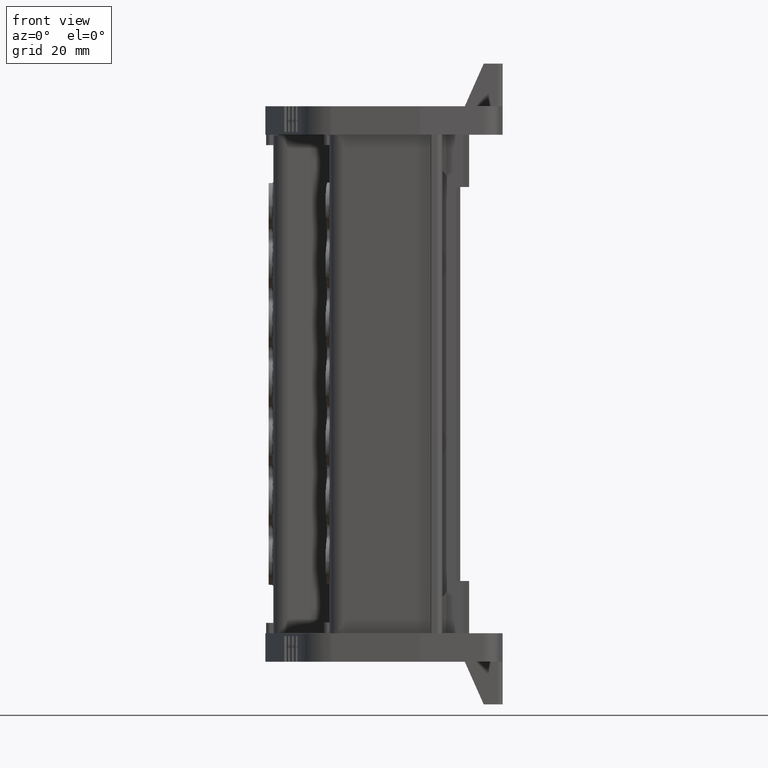
[diagram: clean part render]
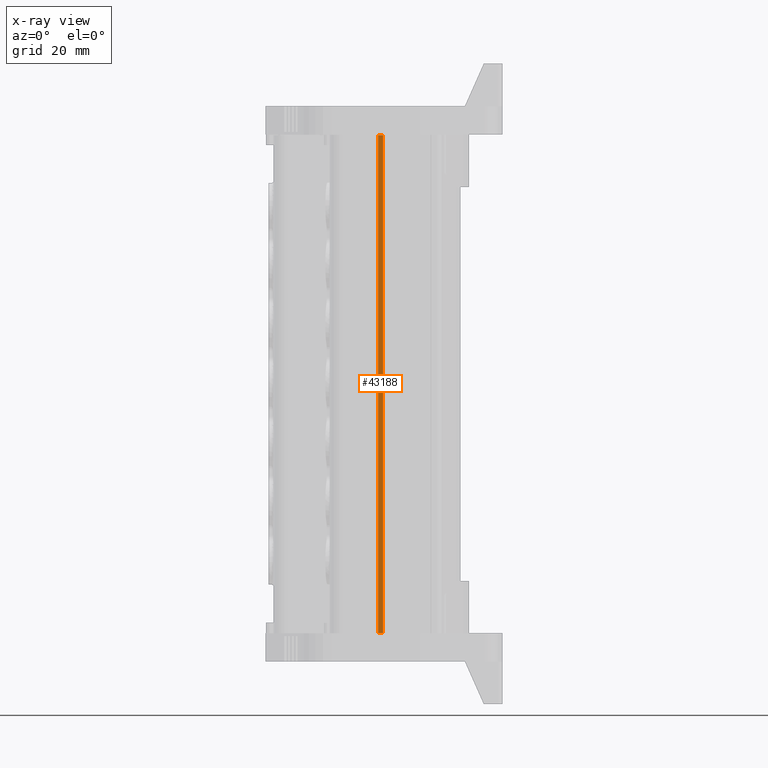
[diagram: x-ray — body ghosted, one internal face saturated and labeled with its STEP entity id]
A machine part, front view, then the same camera in x-ray: the body is ghosted and one INTERNAL B-rep face — a face not visible from any outside direction — is saturated and labeled: STEP entity #43188.
In plain terms, the highlighted planar face has unit normal (0.0262, 0.9997, 0).
Its self-contained STEP definition (entity closure, byte-faithful):
#1239 = CARTESIAN_POINT ( 'NONE',  ( 1890.082289405916300, 787.8007686069231600, 110.9204558807908700 ) ) ;
#1265 = CARTESIAN_POINT ( 'NONE',  ( 1891.132873597531200, 787.7732587337150100, 110.9204558807908500 ) ) ;
#1287 = CARTESIAN_POINT ( 'NONE',  ( 1891.132873597531700, 787.7732587337386600, 5.998782997044413500 ) ) ;
#1303 = CARTESIAN_POINT ( 'NONE',  ( 1890.082289405916300, 787.8007686069469200, 5.998782997044413500 ) ) ;
#19799 = ORIENTED_EDGE ( 'NONE', *, *, #47235, .F. ) ;
#19820 = ORIENTED_EDGE ( 'NONE', *, *, #47056, .T. ) ;
#19840 = ORIENTED_EDGE ( 'NONE', *, *, #50460, .F. ) ;
#19850 = ORIENTED_EDGE ( 'NONE', *, *, #47093, .T. ) ;
#27861 = AXIS2_PLACEMENT_3D ( 'NONE', #47846, #47853, #47860 ) ;
#27949 = VECTOR ( 'NONE', #49202, 999.9999999999998900 ) ;
#27965 = VECTOR ( 'NONE', #49399, 1000.000000000000000 ) ;
#28022 = VECTOR ( 'NONE', #53014, 1000.000000000000000 ) ;
#40239 = EDGE_LOOP ( 'NONE', ( #19850, #19820, #19799, #19840 ) ) ;
#43188 = ADVANCED_FACE ( 'NONE', ( #47914 ), #47829, .F. ) ;
#47056 = EDGE_CURVE ( 'NONE', #58537, #58570, #49239, .T. ) ;
#47093 = EDGE_CURVE ( 'NONE', #58492, #58537, #49437, .T. ) ;
#47235 = EDGE_CURVE ( 'NONE', #58577, #58570, #53003, .T. ) ;
#47829 = PLANE ( 'NONE',  #27861 ) ;
#47846 = CARTESIAN_POINT ( 'NONE',  ( 1879.005651199090200, 788.0908138170783600, 110.5204558807910800 ) ) ;
#47853 = DIRECTION ( 'NONE',  ( 0.02617633781372179600, 0.9996573409617227600, 2.252827049703058000E-013 ) ) ;
#47860 = DIRECTION ( 'NONE',  ( -0.9996573409617227600, 0.02617633781372179600, 4.509776866056247900E-015 ) ) ;
#47914 = FACE_OUTER_BOUND ( 'NONE', #40239, .T. ) ;
#49172 = CARTESIAN_POINT ( 'NONE',  ( 1879.005651199090800, 788.0908138171018900, 5.998782997044413500 ) ) ;
#49202 = DIRECTION ( 'NONE',  ( 0.9996573409617227600, -0.02617633781372179200, 0.0000000000000000000 ) ) ;
#49239 = LINE ( 'NONE', #49172, #27949 ) ;
#49373 = CARTESIAN_POINT ( 'NONE',  ( 1890.082289405916300, 787.8007686069232700, 110.5204558807909500 ) ) ;
#49399 = DIRECTION ( 'NONE',  ( 5.407006797731520700E-016, 2.253457681589397900E-013, -1.000000000000000000 ) ) ;
#49437 = LINE ( 'NONE', #49373, #27965 ) ;
#50460 = EDGE_CURVE ( 'NONE', #58492, #58577, #68381, .T. ) ;
#53003 = LINE ( 'NONE', #53006, #28022 ) ;
#53006 = CARTESIAN_POINT ( 'NONE',  ( 1891.132873597531200, 787.7732587337151200, 110.5204558807910500 ) ) ;
#53014 = DIRECTION ( 'NONE',  ( 5.407006797731520700E-016, 2.253457681589397900E-013, -1.000000000000000000 ) ) ;
#58492 = VERTEX_POINT ( 'NONE', #1239 ) ;
#58537 = VERTEX_POINT ( 'NONE', #1303 ) ;
#58570 = VERTEX_POINT ( 'NONE', #1287 ) ;
#58577 = VERTEX_POINT ( 'NONE', #1265 ) ;
#63676 = VECTOR ( 'NONE', #68421, 999.9999999999998900 ) ;
#68381 = LINE ( 'NONE', #68396, #63676 ) ;
#68396 = CARTESIAN_POINT ( 'NONE',  ( 1879.005651199090200, 788.0908138170782400, 110.9204558807909400 ) ) ;
#68421 = DIRECTION ( 'NONE',  ( 0.9996573409617227600, -0.02617633781372179900, -5.392034196004339300E-015 ) ) ;